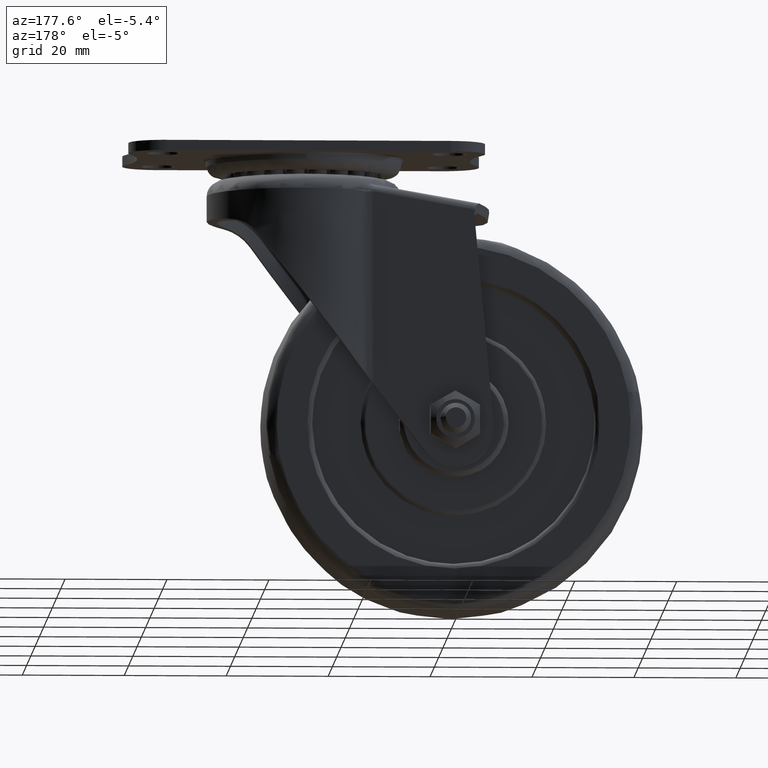
[diagram: clean part render]
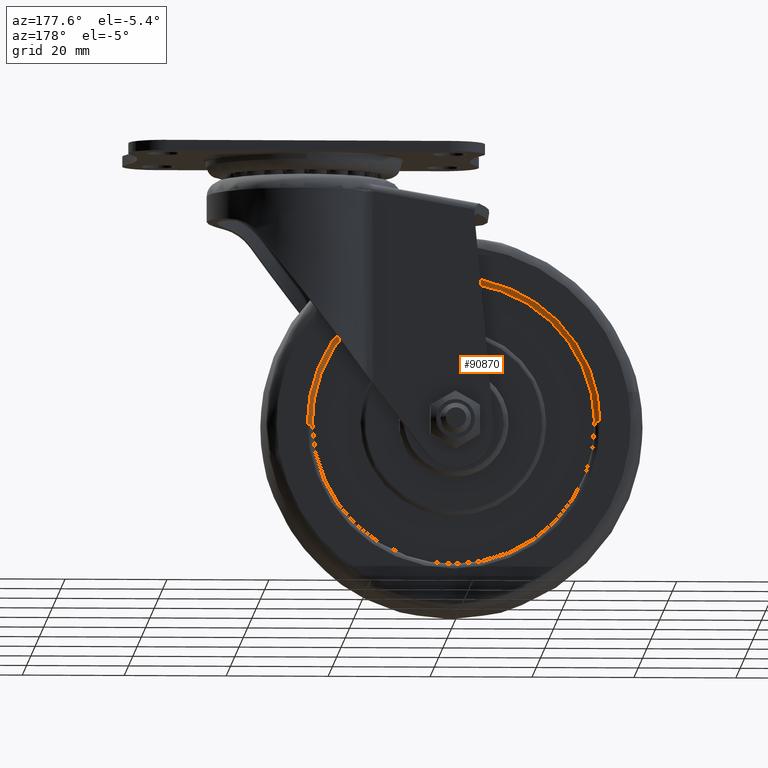
[diagram: same view with one face highlighted and labeled with its STEP entity id]
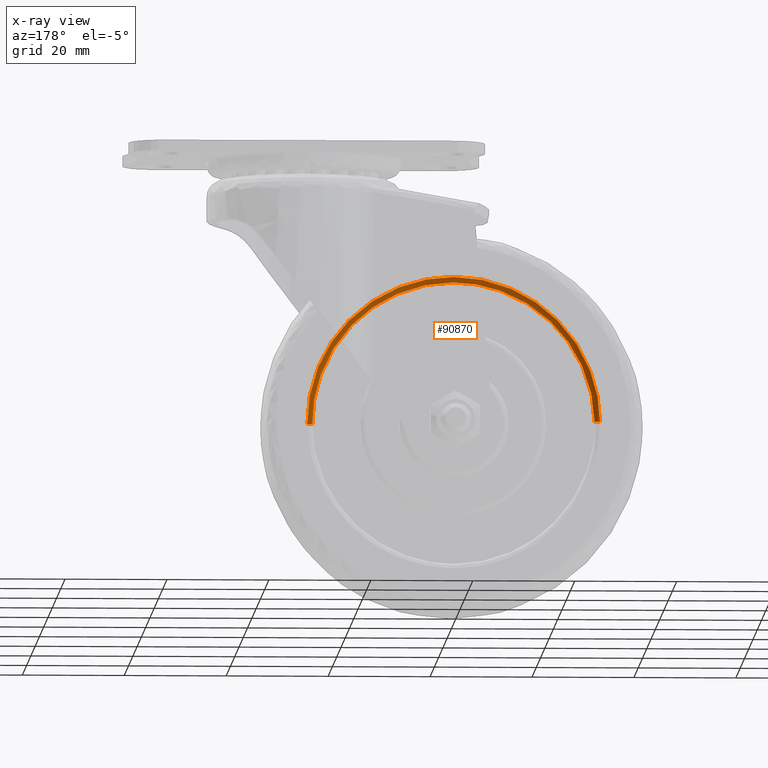
[diagram: x-ray of the same camera — body ghosted, the highlighted face saturated]
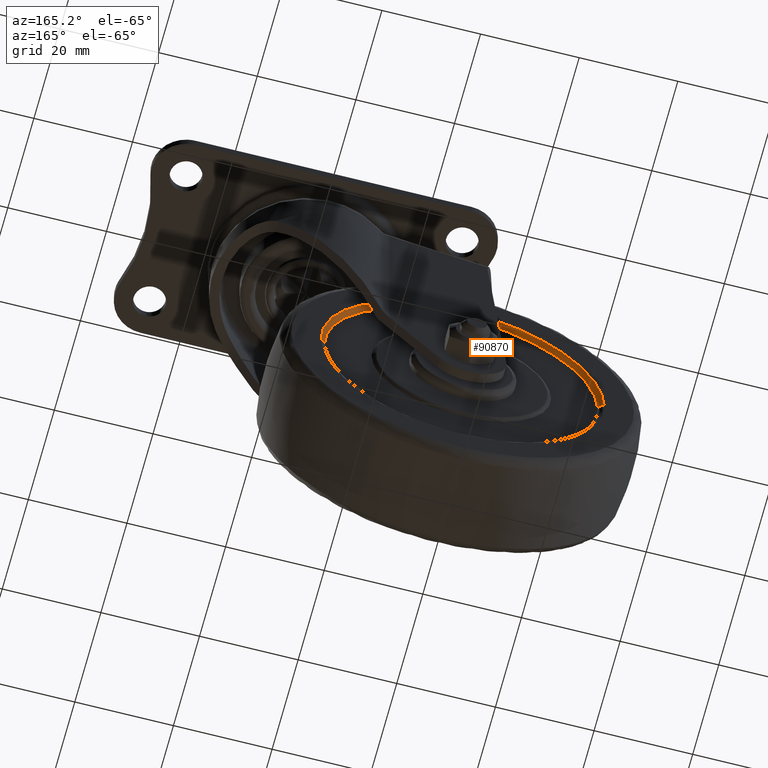
[diagram: same view with one face highlighted and labeled with its STEP entity id]
A machine part, auxiliary view. The second image highlights one B-rep face of the part: STEP entity #90870.
The next image is the same camera in x-ray: the body ghosted, the highlighted face saturated — about 0% of this face is hidden behind the body in this view.
A second angle (auxiliary view) of the same face is appended — the face is thin or edge-on in the first view.
In plain terms, the highlighted face is a freeform B-spline surface patch.
Its self-contained STEP definition (entity closure, byte-faithful):
#90658=CARTESIAN_POINT('',(28.697734964635710,10.500000000000000,-0.360645357400142));
#90659=VERTEX_POINT('',#90658);
#90673=CARTESIAN_POINT('',(0.0,10.500000000000000,28.700001000000000));
#90674=VERTEX_POINT('',#90673);
#90675=CARTESIAN_POINT('',(28.697734964635707,10.500000000000005,-0.360645357400142));
#90676=CARTESIAN_POINT('',(28.700000996080245,10.499999999999996,-0.180329797716909));
#90677=CARTESIAN_POINT('',(28.700000996092601,10.500000000000000,4.909757E-011));
#90678=CARTESIAN_POINT('',(28.700000998058563,10.500000000000000,28.700001000024390));
#90679=CARTESIAN_POINT('',(0.0,10.500000000000000,28.700001000000000));
#90687=(BOUNDED_CURVE()B_SPLINE_CURVE(2,(#90675,#90676,#90677,#90678,#90679),.UNSPECIFIED.,.F.,.U.)B_SPLINE_CURVE_WITH_KNOTS((3,2,3),(0.247784295920311,0.250000000000000,0.500000000000000),.UNSPECIFIED.)CURVE()GEOMETRIC_REPRESENTATION_ITEM()RATIONAL_B_SPLINE_CURVE((0.994854295640750,0.997404141200647,1.0,0.707106781186547,1.0))REPRESENTATION_ITEM(''));
#90688=EDGE_CURVE('',#90659,#90674,#90687,.T.);
#90690=CARTESIAN_POINT('',(-28.697734964635700,10.500000000000000,0.360645357400140));
#90691=VERTEX_POINT('',#90690);
#90692=CARTESIAN_POINT('',(0.0,10.500000000000000,28.700001000000000));
#90693=CARTESIAN_POINT('',(-28.341593373657421,10.500000000000002,28.700000999975288));
#90694=CARTESIAN_POINT('',(-28.697734964635703,10.499999999999996,0.360645357400140));
#90702=(BOUNDED_CURVE()B_SPLINE_CURVE(2,(#90692,#90693,#90694),.UNSPECIFIED.,.F.,.U.)B_SPLINE_CURVE_WITH_KNOTS((3,3),(0.500000000000000,0.747784295920311),.UNSPECIFIED.)CURVE()GEOMETRIC_REPRESENTATION_ITEM()RATIONAL_B_SPLINE_CURVE((1.0,0.709702639985901,0.994854295640750))REPRESENTATION_ITEM(''));
#90703=EDGE_CURVE('',#90674,#90691,#90702,.T.);
#90748=CARTESIAN_POINT('',(-27.697813924365651,9.500000003674021,0.348079317422156));
#90749=VERTEX_POINT('',#90748);
#90765=CARTESIAN_POINT('',(27.697813924365651,9.500000003674021,-0.348079317422163));
#90766=VERTEX_POINT('',#90765);
#90780=CARTESIAN_POINT('',(27.697813924365651,9.500000003674021,-0.348079317422163));
#90781=CARTESIAN_POINT('',(27.697813928038467,10.499999996067745,-0.348079317540351));
#90782=CARTESIAN_POINT('',(28.697734964635707,10.499999999999998,-0.360645357400142));
#90790=(BOUNDED_CURVE()B_SPLINE_CURVE(2,(#90780,#90781,#90782),.UNSPECIFIED.,.F.,.U.)B_SPLINE_CURVE_WITH_KNOTS((3,3),(-1.725134639514125,-0.274865360750696),.UNSPECIFIED.)CURVE()GEOMETRIC_REPRESENTATION_ITEM()RATIONAL_B_SPLINE_CURVE((0.883342148308764,0.624617225519119,0.883342148214277))REPRESENTATION_ITEM(''));
#90791=EDGE_CURVE('',#90766,#90659,#90790,.T.);
#90795=CARTESIAN_POINT('',(-27.697813924365654,9.500000003674019,0.348079317422156));
#90796=CARTESIAN_POINT('',(-27.697813928038478,10.499999996067743,0.348079317540346));
#90797=CARTESIAN_POINT('',(-28.697734964635707,10.500000000000000,0.360645357400140));
#90805=(BOUNDED_CURVE()B_SPLINE_CURVE(2,(#90795,#90796,#90797),.UNSPECIFIED.,.F.,.U.)B_SPLINE_CURVE_WITH_KNOTS((3,3),(-1.725134639514125,-0.274865360750700),.UNSPECIFIED.)CURVE()GEOMETRIC_REPRESENTATION_ITEM()RATIONAL_B_SPLINE_CURVE((0.883342148308764,0.624617225519120,0.883342148214276))REPRESENTATION_ITEM(''));
#90806=EDGE_CURVE('',#90749,#90691,#90805,.T.);
#90811=CARTESIAN_POINT('',(27.700234367751239,9.430462890886753,-0.348109735124679));
#90812=CARTESIAN_POINT('',(28.048344102875920,9.430462890886755,27.352124632626559));
#90813=CARTESIAN_POINT('',(0.348109735124676,9.430462890886753,27.700234367751239));
#90814=CARTESIAN_POINT('',(-27.352124632626559,9.430462890886755,28.048344102875920));
#90815=CARTESIAN_POINT('',(-27.700234367751239,9.430462890886753,0.348109735124673));
#90816=CARTESIAN_POINT('',(27.620282902737269,10.577537174017754,-0.347104982495537));
#90817=CARTESIAN_POINT('',(27.967387885232796,10.577537174017753,27.273177920241714));
#90818=CARTESIAN_POINT('',(0.347104982495534,10.577537174017754,27.620282902737269));
#90819=CARTESIAN_POINT('',(-27.273177920241736,10.577537174017753,27.967387885232796));
#90820=CARTESIAN_POINT('',(-27.620282902737269,10.577537174017754,0.347104982495531));
#90821=CARTESIAN_POINT('',(28.767266615450719,10.497579363531763,-0.361519163658200));
#90822=CARTESIAN_POINT('',(29.128785779108913,10.497579363531763,28.405747451792507));
#90823=CARTESIAN_POINT('',(0.361519163658197,10.497579363531763,28.767266615450708));
#90824=CARTESIAN_POINT('',(-28.405747451792507,10.497579363531763,29.128785779108913));
#90825=CARTESIAN_POINT('',(-28.767266615450719,10.497579363531763,0.361519163658194));
#90833=(BOUNDED_SURFACE()B_SPLINE_SURFACE(2,2,((#90811,#90816,#90821),(#90812,#90817,#90822),(#90813,#90818,#90823),(#90814,#90819,#90824),(#90815,#90820,#90825)),.UNSPECIFIED.,.F.,.F.,.U.)B_SPLINE_SURFACE_WITH_KNOTS((3,2,3),(3,3),(0.0,47.666931518619499,95.333863037238999),(0.0,1.822373945662543),.UNSPECIFIED.)GEOMETRIC_REPRESENTATION_ITEM()RATIONAL_B_SPLINE_SURFACE(((0.910479795090997,0.597479572841838,0.910479806786608),(0.643806437242182,0.422481857576905,0.643806445512228),(0.910479795090997,0.597479572841838,0.910479806786608),(0.643806437242182,0.422481857576905,0.643806445512228),(0.910479795090997,0.597479572841838,0.910479806786608)))REPRESENTATION_ITEM('')SURFACE());
#90834=CARTESIAN_POINT('',(0.0,9.500000000000000,27.700000999999990));
#90835=VERTEX_POINT('',#90834);
#90836=CARTESIAN_POINT('',(-27.697813924365647,9.500000003674021,0.348079317422156));
#90837=CARTESIAN_POINT('',(-27.354081445858359,9.500000001837011,27.700001000000000));
#90838=CARTESIAN_POINT('',(0.0,9.500000000000000,27.700000999999990));
#90846=(BOUNDED_CURVE()B_SPLINE_CURVE(2,(#90836,#90837,#90838),.UNSPECIFIED.,.F.,.U.)B_SPLINE_CURVE_WITH_KNOTS((3,3),(0.504431408157652,1.0),.UNSPECIFIED.)CURVE()GEOMETRIC_REPRESENTATION_ITEM()RATIONAL_B_SPLINE_CURVE((0.994854295642737,0.709702639984889,1.0))REPRESENTATION_ITEM(''));
#90847=EDGE_CURVE('',#90749,#90835,#90846,.T.);
#90848=ORIENTED_EDGE('',*,*,#90847,.F.);
#90849=ORIENTED_EDGE('',*,*,#90806,.T.);
#90850=ORIENTED_EDGE('',*,*,#90703,.F.);
#90851=ORIENTED_EDGE('',*,*,#90688,.F.);
#90852=ORIENTED_EDGE('',*,*,#90791,.F.);
#90853=CARTESIAN_POINT('',(0.0,9.500000000000000,27.700000999999990));
#90854=CARTESIAN_POINT('',(27.700001000000000,9.500000001814069,27.700001000000000));
#90855=CARTESIAN_POINT('',(27.700001000000000,9.500000003651081,-4.389699E-015));
#90856=CARTESIAN_POINT('',(27.700001000000000,9.500000003662624,-0.174046529702250));
#90857=CARTESIAN_POINT('',(27.697813924365647,9.500000003674021,-0.348079317422163));
#90865=(BOUNDED_CURVE()B_SPLINE_CURVE(2,(#90853,#90854,#90855,#90856,#90857),.UNSPECIFIED.,.F.,.U.)B_SPLINE_CURVE_WITH_KNOTS((3,2,3),(0.0,0.500000000000000,0.504431408157652),.UNSPECIFIED.)CURVE()GEOMETRIC_REPRESENTATION_ITEM()RATIONAL_B_SPLINE_CURVE((1.0,0.707106781186548,1.0,0.997404141201658,0.994854295642737))REPRESENTATION_ITEM(''));
#90866=EDGE_CURVE('',#90835,#90766,#90865,.T.);
#90867=ORIENTED_EDGE('',*,*,#90866,.F.);
#90868=EDGE_LOOP('',(#90848,#90849,#90850,#90851,#90852,#90867));
#90869=FACE_OUTER_BOUND('',#90868,.T.);
#90870=ADVANCED_FACE('',(#90869),#90833,.T.);